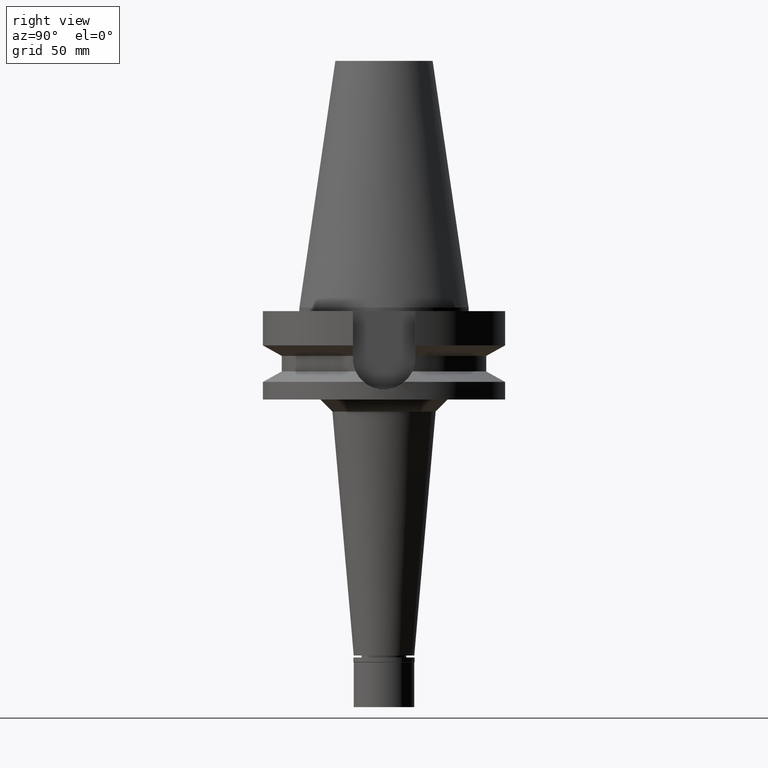
[diagram: clean part render]
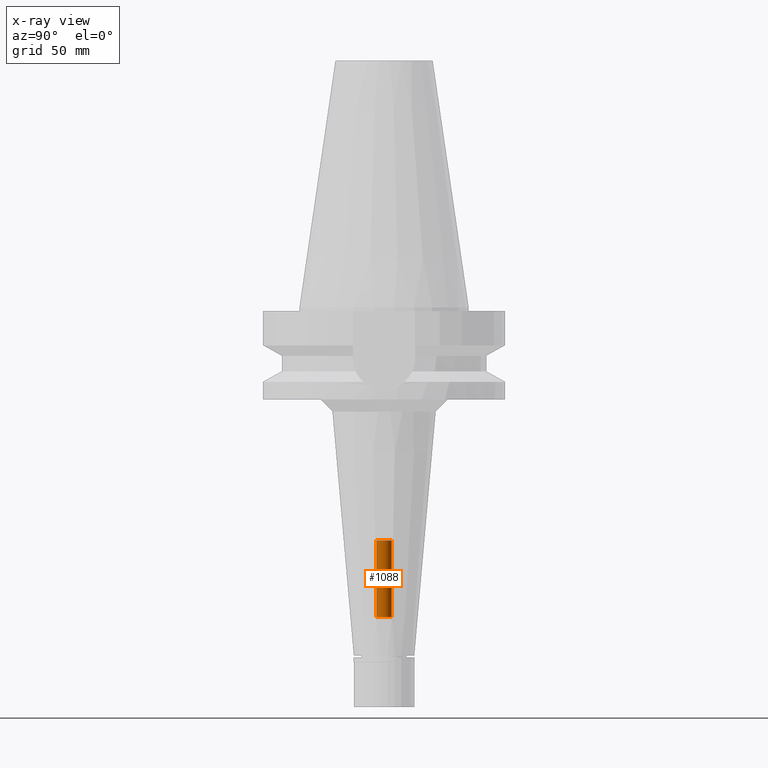
[diagram: x-ray — body ghosted, one internal face saturated and labeled with its STEP entity id]
A machine part, right view, then the same camera in x-ray: the body is ghosted and one INTERNAL B-rep face — a face not visible from any outside direction — is saturated and labeled: STEP entity #1088.
In plain terms, the highlighted cylindrical surface (edge-blend (fillet) strip) has radius 3.2 mm, axis along (0, 0, -1).
Its self-contained STEP definition (entity closure, byte-faithful):
#40 = CARTESIAN_POINT ( 'NONE',  ( 0.0000000000000000000, -3.200000000000000178, -96.19999999999998863 ) ) ;
#125 = ORIENTED_EDGE ( 'NONE', *, *, #2518, .T. ) ;
#297 = EDGE_CURVE ( 'NONE', #392, #2156, #1873, .T. ) ;
#356 = CIRCLE ( 'NONE', #2235, 3.200000000000000178 ) ;
#392 = VERTEX_POINT ( 'NONE', #2900 ) ;
#412 = DIRECTION ( 'NONE',  ( 0.0000000000000000000, -1.000000000000000000, 0.0000000000000000000 ) ) ;
#424 = CARTESIAN_POINT ( 'NONE',  ( 0.0000000000000000000, -3.200000000000000178, -127.7999999999999972 ) ) ;
#464 = CYLINDRICAL_SURFACE ( 'NONE', #742, 3.200000000000000178 ) ;
#475 = DIRECTION ( 'NONE',  ( 0.0000000000000000000, 0.0000000000000000000, 1.000000000000000000 ) ) ;
#557 = ORIENTED_EDGE ( 'NONE', *, *, #2323, .T. ) ;
#742 = AXIS2_PLACEMENT_3D ( 'NONE', #1400, #2633, #412 ) ;
#745 = CARTESIAN_POINT ( 'NONE',  ( 0.0000000000000000000, -3.200000000000000178, -127.7999999999999972 ) ) ;
#985 = CARTESIAN_POINT ( 'NONE',  ( 0.0000000000000000000, 3.200000000000000178, -96.19999999999998863 ) ) ;
#1028 = CARTESIAN_POINT ( 'NONE',  ( 0.0000000000000000000, 3.200000000000000178, -127.7999999999999972 ) ) ;
#1088 = ADVANCED_FACE ( 'NONE', ( #1168 ), #464, .F. ) ;
#1148 = DIRECTION ( 'NONE',  ( 0.0000000000000000000, 0.0000000000000000000, -1.000000000000000000 ) ) ;
#1168 = FACE_OUTER_BOUND ( 'NONE', #2161, .T. ) ;
#1178 = CARTESIAN_POINT ( 'NONE',  ( 0.0000000000000000000, 2.630908718607999774E-14, -127.7999999999999972 ) ) ;
#1286 = EDGE_CURVE ( 'NONE', #392, #2786, #2477, .T. ) ;
#1400 = CARTESIAN_POINT ( 'NONE',  ( 0.0000000000000000000, 2.630908718607999774E-14, 114.8299999999999983 ) ) ;
#1483 = DIRECTION ( 'NONE',  ( 0.0000000000000000000, -1.000000000000000000, 0.0000000000000000000 ) ) ;
#1515 = VERTEX_POINT ( 'NONE', #40 ) ;
#1873 = CIRCLE ( 'NONE', #2904, 3.200000000000000178 ) ;
#2156 = VERTEX_POINT ( 'NONE', #424 ) ;
#2161 = EDGE_LOOP ( 'NONE', ( #2418, #557, #125, #2288 ) ) ;
#2183 = DIRECTION ( 'NONE',  ( 0.0000000000000000000, 0.0000000000000000000, 1.000000000000000000 ) ) ;
#2235 = AXIS2_PLACEMENT_3D ( 'NONE', #2696, #475, #1483 ) ;
#2272 = DIRECTION ( 'NONE',  ( 0.0000000000000000000, 0.0000000000000000000, 1.000000000000000000 ) ) ;
#2288 = ORIENTED_EDGE ( 'NONE', *, *, #1286, .F. ) ;
#2323 = EDGE_CURVE ( 'NONE', #2156, #1515, #2434, .T. ) ;
#2418 = ORIENTED_EDGE ( 'NONE', *, *, #297, .T. ) ;
#2434 = LINE ( 'NONE', #745, #2988 ) ;
#2477 = LINE ( 'NONE', #1028, #2703 ) ;
#2518 = EDGE_CURVE ( 'NONE', #1515, #2786, #356, .T. ) ;
#2633 = DIRECTION ( 'NONE',  ( 0.0000000000000000000, 0.0000000000000000000, -1.000000000000000000 ) ) ;
#2644 = DIRECTION ( 'NONE',  ( 0.0000000000000000000, 1.000000000000000000, 0.0000000000000000000 ) ) ;
#2696 = CARTESIAN_POINT ( 'NONE',  ( 0.0000000000000000000, 2.630908718607999774E-14, -96.19999999999998863 ) ) ;
#2703 = VECTOR ( 'NONE', #2272, 1000.000000000000000 ) ;
#2786 = VERTEX_POINT ( 'NONE', #985 ) ;
#2900 = CARTESIAN_POINT ( 'NONE',  ( 0.0000000000000000000, 3.200000000000000178, -127.7999999999999972 ) ) ;
#2904 = AXIS2_PLACEMENT_3D ( 'NONE', #1178, #1148, #2644 ) ;
#2988 = VECTOR ( 'NONE', #2183, 1000.000000000000000 ) ;